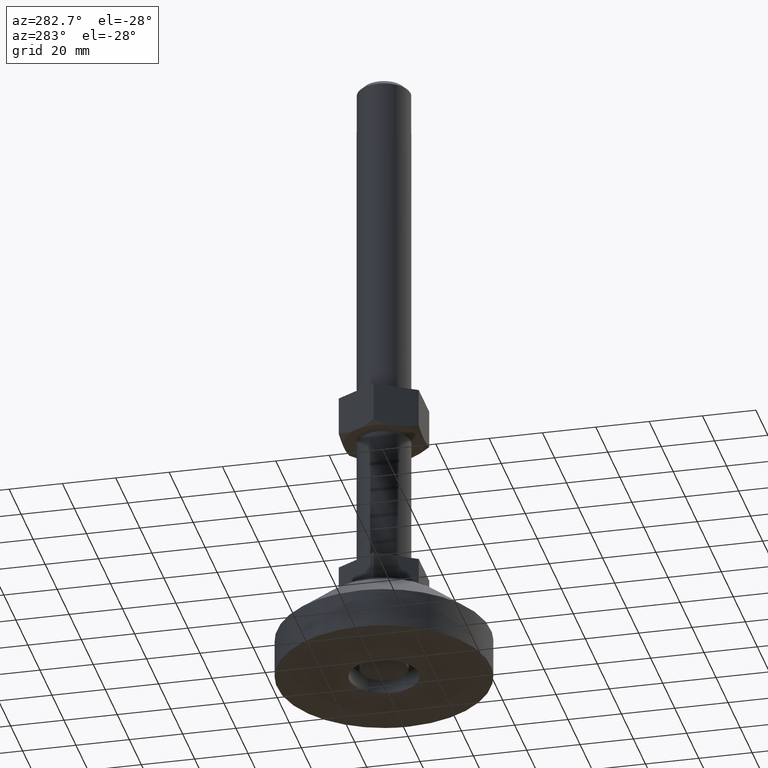
[diagram: clean part render]
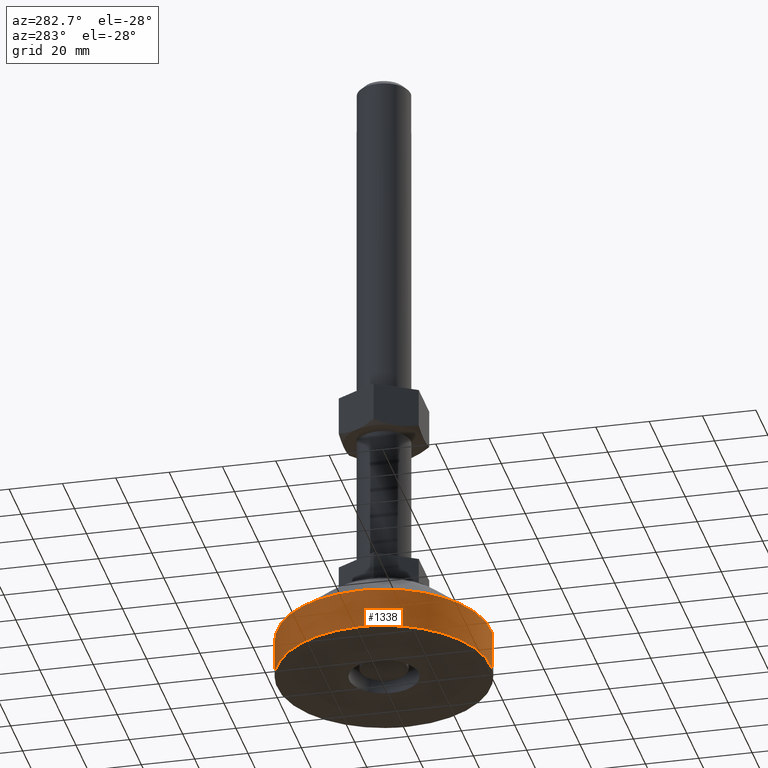
[diagram: same view with one face highlighted and labeled with its STEP entity id]
A machine part, auxiliary view. The second image highlights one B-rep face of the part: STEP entity #1338.
In plain terms, the highlighted face is a freeform B-spline surface patch.
Its self-contained STEP definition (entity closure, byte-faithful):
#1144=CARTESIAN_POINT('',(-39.999999999999993,0.0,-8.526513E-014));
#1145=VERTEX_POINT('',#1144);
#1146=CARTESIAN_POINT('',(-2.441928921607621,39.925392711176372,-8.679168E-014));
#1147=VERTEX_POINT('',#1146);
#1148=CARTESIAN_POINT('',(-39.999999999999993,0.0,-8.526513E-014));
#1149=CARTESIAN_POINT('',(-39.999999999999929,37.628254629916938,-8.602841E-014));
#1150=CARTESIAN_POINT('',(-2.441928921607621,39.925392711176372,-8.679168E-014));
#1158=(BOUNDED_CURVE()B_SPLINE_CURVE(2,(#1148,#1149,#1150),.UNSPECIFIED.,.F.,.U.)B_SPLINE_CURVE_WITH_KNOTS((3,3),(0.0,0.239333016954158),.UNSPECIFIED.)CURVE()GEOMETRIC_REPRESENTATION_ITEM()RATIONAL_B_SPLINE_CURVE((1.0,0.719603929183848,0.976072158931868))REPRESENTATION_ITEM(''));
#1159=EDGE_CURVE('',#1145,#1147,#1158,.T.);
#1178=CARTESIAN_POINT('',(2.441928921607653,-39.925392711176357,-8.504308E-014));
#1179=VERTEX_POINT('',#1178);
#1193=CARTESIAN_POINT('',(2.441928921607653,-39.925392711176364,-8.504308E-014));
#1194=CARTESIAN_POINT('',(1.222104184301880,-39.999999999998018,-8.504627E-014));
#1195=CARTESIAN_POINT('',(-1.017075E-013,-39.999999999998053,-8.504967E-014));
#1196=CARTESIAN_POINT('',(-40.000000000000036,-39.999999999999048,-8.516069E-014));
#1197=CARTESIAN_POINT('',(-39.999999999999993,0.0,-8.526513E-014));
#1205=(BOUNDED_CURVE()B_SPLINE_CURVE(2,(#1193,#1194,#1195,#1196,#1197),.UNSPECIFIED.,.F.,.U.)B_SPLINE_CURVE_WITH_KNOTS((3,2,3),(0.739333016954158,0.750000000000000,1.0),.UNSPECIFIED.)CURVE()GEOMETRIC_REPRESENTATION_ITEM()RATIONAL_B_SPLINE_CURVE((0.976072158931868,0.987502852002700,1.0,0.707106781186548,1.0))REPRESENTATION_ITEM(''));
#1206=EDGE_CURVE('',#1179,#1145,#1205,.T.);
#1235=CARTESIAN_POINT('',(-2.441941581403065,39.925391936875393,14.999999999998170));
#1236=VERTEX_POINT('',#1235);
#1237=CARTESIAN_POINT('',(-2.441941581403065,39.925391936875393,14.999999999998170));
#1238=CARTESIAN_POINT('',(-2.441928921607621,39.925392711176372,-8.679168E-014));
#1239=QUASI_UNIFORM_CURVE('',1,(#1237,#1238),.UNSPECIFIED.,.F.,.U.);
#1240=EDGE_CURVE('',#1236,#1147,#1239,.T.);
#1259=CARTESIAN_POINT('',(2.441941581403095,-39.925391936875393,14.999999999998179));
#1260=VERTEX_POINT('',#1259);
#1274=CARTESIAN_POINT('',(2.441941581403095,-39.925391936875393,14.999999999998179));
#1275=CARTESIAN_POINT('',(2.441928921607653,-39.925392711176357,-8.504308E-014));
#1276=QUASI_UNIFORM_CURVE('',1,(#1274,#1275),.UNSPECIFIED.,.F.,.U.);
#1277=EDGE_CURVE('',#1260,#1179,#1276,.T.);
#1284=CARTESIAN_POINT('',(2.441941581394294,-39.925391936874668,15.375000000000000));
#1285=CARTESIAN_POINT('',(-37.483450355480372,-42.367333518268957,15.375000000000002));
#1286=CARTESIAN_POINT('',(-39.925391936874647,-2.441941581394279,15.375000000000000));
#1287=CARTESIAN_POINT('',(-42.367333518268929,37.483450355480386,15.375000000000002));
#1288=CARTESIAN_POINT('',(-2.441941581394265,39.925391936874668,15.375000000000000));
#1289=CARTESIAN_POINT('',(2.441941581394294,-39.925391936874668,-0.384375000000087));
#1290=CARTESIAN_POINT('',(-37.483450355480372,-42.367333518268957,-0.384375000000087));
#1291=CARTESIAN_POINT('',(-39.925391936874647,-2.441941581394279,-0.384375000000087));
#1292=CARTESIAN_POINT('',(-42.367333518268929,37.483450355480386,-0.384375000000087));
#1293=CARTESIAN_POINT('',(-2.441941581394265,39.925391936874668,-0.384375000000087));
#1301=(BOUNDED_SURFACE()B_SPLINE_SURFACE(2,1,((#1284,#1289),(#1285,#1290),(#1286,#1291),(#1287,#1292),(#1288,#1293)),.UNSPECIFIED.,.F.,.F.,.U.)B_SPLINE_SURFACE_WITH_KNOTS((3,2,3),(2,2),(0.0,66.274169979695188,132.548339959390400),(0.0,15.759375000000089),.UNSPECIFIED.)GEOMETRIC_REPRESENTATION_ITEM()RATIONAL_B_SPLINE_SURFACE(((1.0,1.0),(0.707106781186548,0.707106781186548),(1.0,1.0),(0.707106781186548,0.707106781186548),(1.0,1.0)))REPRESENTATION_ITEM('')SURFACE());
#1302=ORIENTED_EDGE('',*,*,#1240,.T.);
#1303=ORIENTED_EDGE('',*,*,#1159,.F.);
#1304=ORIENTED_EDGE('',*,*,#1206,.F.);
#1305=ORIENTED_EDGE('',*,*,#1277,.F.);
#1306=CARTESIAN_POINT('',(-39.999999999999993,0.0,15.0));
#1307=VERTEX_POINT('',#1306);
#1308=CARTESIAN_POINT('',(2.441941581403095,-39.925391936875393,14.999999999998177));
#1309=CARTESIAN_POINT('',(1.222110531943790,-40.000000000001748,14.999999999998206));
#1310=CARTESIAN_POINT('',(-8.389656E-012,-40.000000000001712,14.999999999998231));
#1311=CARTESIAN_POINT('',(-40.000000000004050,-40.000000000000831,14.999999999999146));
#1312=CARTESIAN_POINT('',(-39.999999999999993,0.0,15.0));
#1320=(BOUNDED_CURVE()B_SPLINE_CURVE(2,(#1308,#1309,#1310,#1311,#1312),.UNSPECIFIED.,.F.,.U.)B_SPLINE_CURVE_WITH_KNOTS((3,2,3),(0.739332962241893,0.750000000000000,1.0),.UNSPECIFIED.)CURVE()GEOMETRIC_REPRESENTATION_ITEM()RATIONAL_B_SPLINE_CURVE((0.976072041673040,0.987502787903293,1.0,0.707106781186548,1.0))REPRESENTATION_ITEM(''));
#1321=EDGE_CURVE('',#1260,#1307,#1320,.T.);
#1322=ORIENTED_EDGE('',*,*,#1321,.T.);
#1323=CARTESIAN_POINT('',(-39.999999999999993,0.0,15.0));
#1324=CARTESIAN_POINT('',(-39.999999999995659,37.628242676212203,14.999999999999094));
#1325=CARTESIAN_POINT('',(-2.441941581403065,39.925391936875393,14.999999999998174));
#1333=(BOUNDED_CURVE()B_SPLINE_CURVE(2,(#1323,#1324,#1325),.UNSPECIFIED.,.F.,.U.)B_SPLINE_CURVE_WITH_KNOTS((3,3),(0.0,0.239332962241893),.UNSPECIFIED.)CURVE()GEOMETRIC_REPRESENTATION_ITEM()RATIONAL_B_SPLINE_CURVE((1.0,0.719603993283254,0.976072041673040))REPRESENTATION_ITEM(''));
#1334=EDGE_CURVE('',#1307,#1236,#1333,.T.);
#1335=ORIENTED_EDGE('',*,*,#1334,.T.);
#1336=EDGE_LOOP('',(#1302,#1303,#1304,#1305,#1322,#1335));
#1337=FACE_OUTER_BOUND('',#1336,.T.);
#1338=ADVANCED_FACE('',(#1337),#1301,.T.);